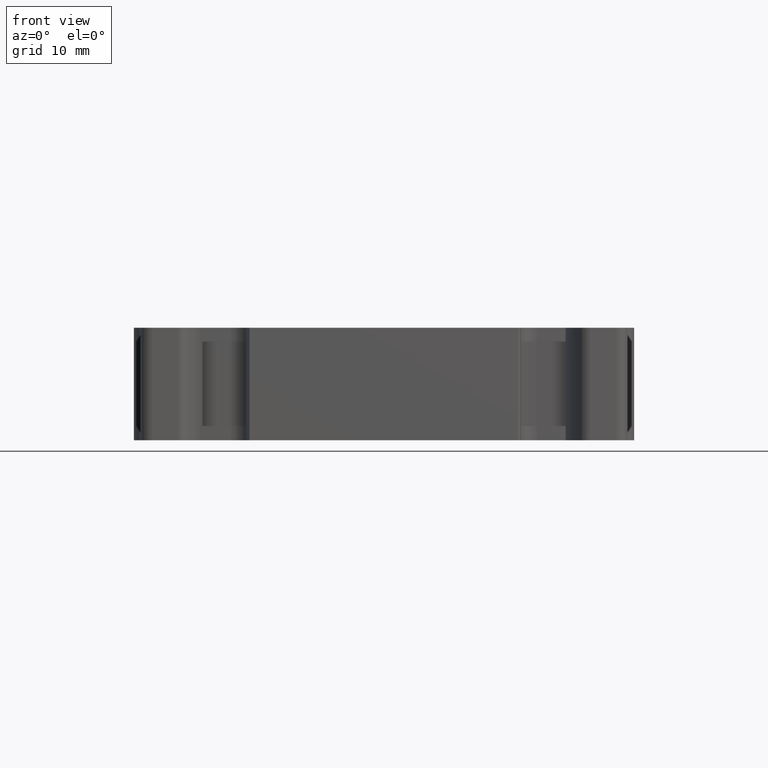
[diagram: clean part render]
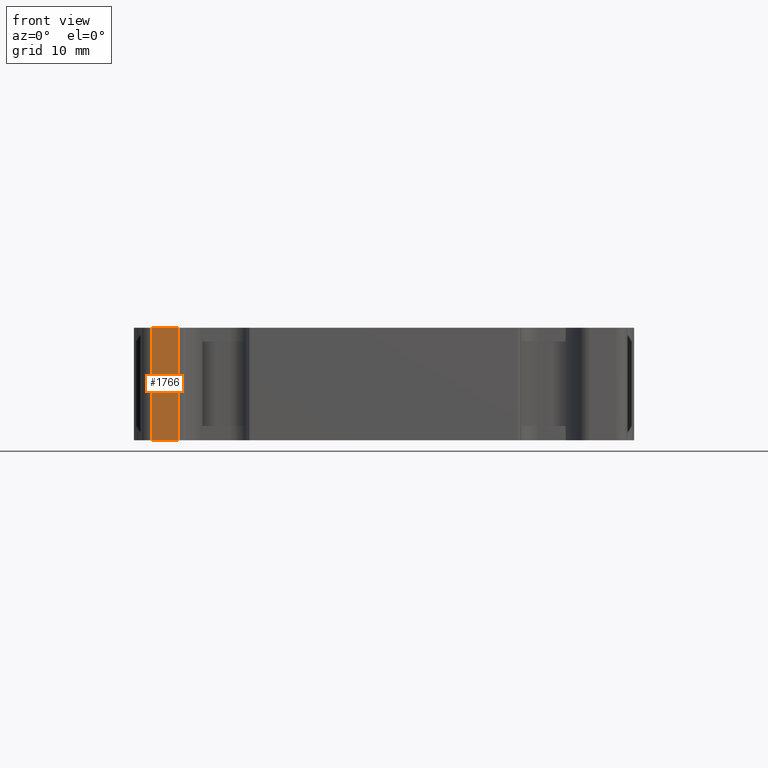
[diagram: same view with one face highlighted and labeled with its STEP entity id]
A machine part, front view. The second image highlights one B-rep face of the part: STEP entity #1766.
In plain terms, the highlighted planar face has unit normal (-0, 1, 0).
Its self-contained STEP definition (entity closure, byte-faithful):
#9 = CARTESIAN_POINT ( 'NONE',  ( 1757.908208816370000, 544.5720436728439600, 10.00000000000000000 ) ) ;
#16 = CARTESIAN_POINT ( 'NONE',  ( 1755.569886089010000, 544.5720436728429400, 0.0000000000000000000 ) ) ;
#19 = CARTESIAN_POINT ( 'NONE',  ( 1755.569886089010000, 544.5720436728429400, 10.00000000000000000 ) ) ;
#60 = CARTESIAN_POINT ( 'NONE',  ( 1757.908208816370000, 544.5720436728439600, 0.0000000000000000000 ) ) ;
#98 = EDGE_LOOP ( 'NONE', ( #259, #282, #348, #331 ) ) ;
#259 = ORIENTED_EDGE ( 'NONE', *, *, #830, .T. ) ;
#282 = ORIENTED_EDGE ( 'NONE', *, *, #866, .F. ) ;
#331 = ORIENTED_EDGE ( 'NONE', *, *, #888, .T. ) ;
#348 = ORIENTED_EDGE ( 'NONE', *, *, #894, .F. ) ;
#459 = VERTEX_POINT ( 'NONE', #9 ) ;
#462 = VERTEX_POINT ( 'NONE', #19 ) ;
#481 = VERTEX_POINT ( 'NONE', #60 ) ;
#495 = VERTEX_POINT ( 'NONE', #16 ) ;
#754 = FACE_OUTER_BOUND ( 'NONE', #98, .T. ) ;
#758 = PLANE ( 'NONE',  #1239 ) ;
#759 = CARTESIAN_POINT ( 'NONE',  ( 1755.569886089010000, 544.5720436728429400, 10.00000000000000000 ) ) ;
#790 = DIRECTION ( 'NONE',  ( -6.172329914610989500E-013, 1.000000000000000000, 0.0000000000000000000 ) ) ;
#810 = DIRECTION ( 'NONE',  ( -1.000000000000000000, -6.172329914610989500E-013, 0.0000000000000000000 ) ) ;
#830 = EDGE_CURVE ( 'NONE', #495, #481, #1596, .T. ) ;
#866 = EDGE_CURVE ( 'NONE', #459, #481, #1302, .T. ) ;
#888 = EDGE_CURVE ( 'NONE', #462, #495, #1334, .T. ) ;
#894 = EDGE_CURVE ( 'NONE', #462, #459, #1398, .T. ) ;
#1014 = VECTOR ( 'NONE', #1399, 1000.000000000000000 ) ;
#1037 = VECTOR ( 'NONE', #1303, 1000.000000000000000 ) ;
#1057 = VECTOR ( 'NONE', #1320, 1000.000000000000000 ) ;
#1195 = VECTOR ( 'NONE', #1662, 1000.000000000000000 ) ;
#1239 = AXIS2_PLACEMENT_3D ( 'NONE', #759, #790, #810 ) ;
#1301 = CARTESIAN_POINT ( 'NONE',  ( 1757.908208816370000, 544.5720436728439600, 10.00000000000000000 ) ) ;
#1302 = LINE ( 'NONE', #1301, #1037 ) ;
#1303 = DIRECTION ( 'NONE',  ( 0.0000000000000000000, 0.0000000000000000000, -1.000000000000000000 ) ) ;
#1309 = CARTESIAN_POINT ( 'NONE',  ( 1755.569886089010000, 544.5720436728429400, 10.00000000000000000 ) ) ;
#1320 = DIRECTION ( 'NONE',  ( 0.0000000000000000000, 0.0000000000000000000, -1.000000000000000000 ) ) ;
#1334 = LINE ( 'NONE', #1309, #1057 ) ;
#1377 = CARTESIAN_POINT ( 'NONE',  ( 1755.569886089010000, 544.5720436728429400, 10.00000000000000000 ) ) ;
#1398 = LINE ( 'NONE', #1377, #1014 ) ;
#1399 = DIRECTION ( 'NONE',  ( 1.000000000000000000, 6.172329914610989500E-013, 0.0000000000000000000 ) ) ;
#1596 = LINE ( 'NONE', #1640, #1195 ) ;
#1640 = CARTESIAN_POINT ( 'NONE',  ( 1755.569886089010000, 544.5720436728429400, 0.0000000000000000000 ) ) ;
#1662 = DIRECTION ( 'NONE',  ( 1.000000000000000000, 6.172329914610989500E-013, 0.0000000000000000000 ) ) ;
#1766 = ADVANCED_FACE ( 'NONE', ( #754 ), #758, .F. ) ;